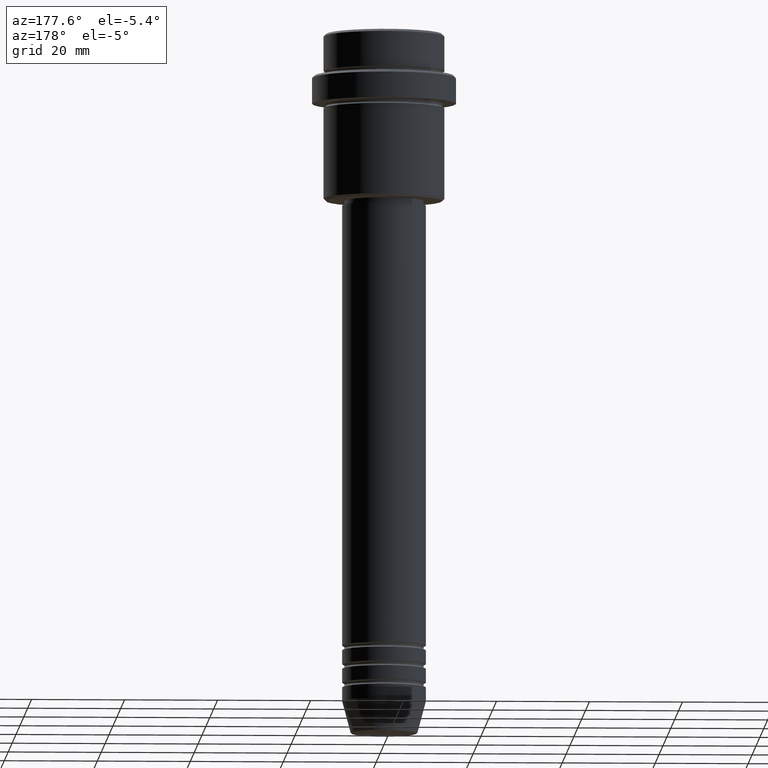
[diagram: clean part render]
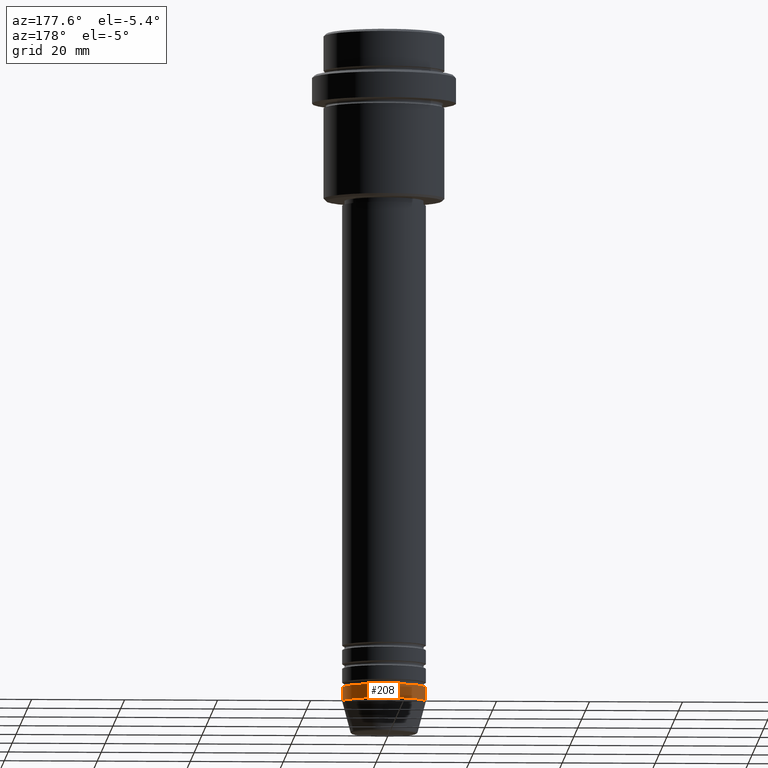
[diagram: same view with one face highlighted and labeled with its STEP entity id]
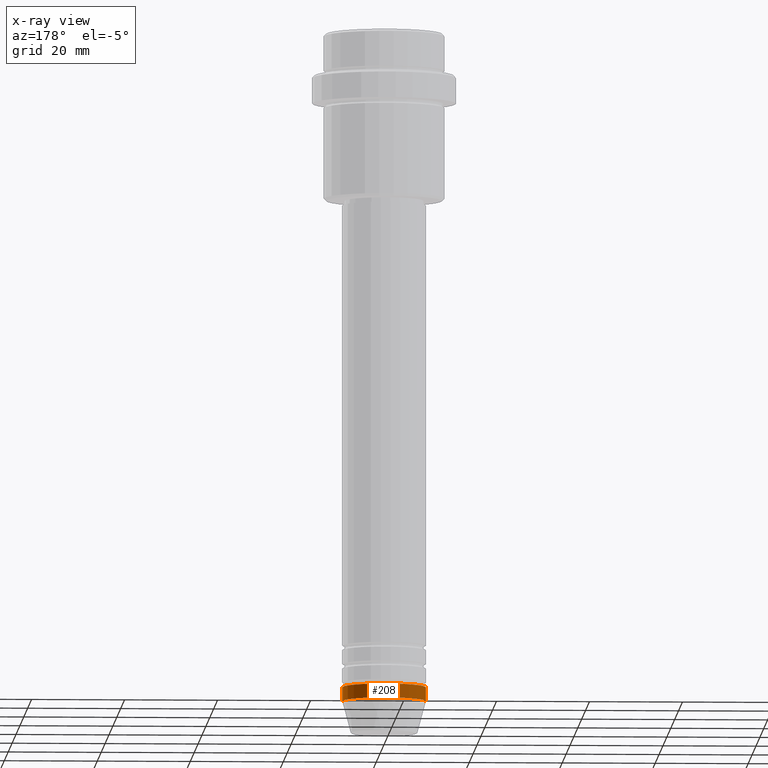
[diagram: x-ray of the same camera — body ghosted, the highlighted face saturated]
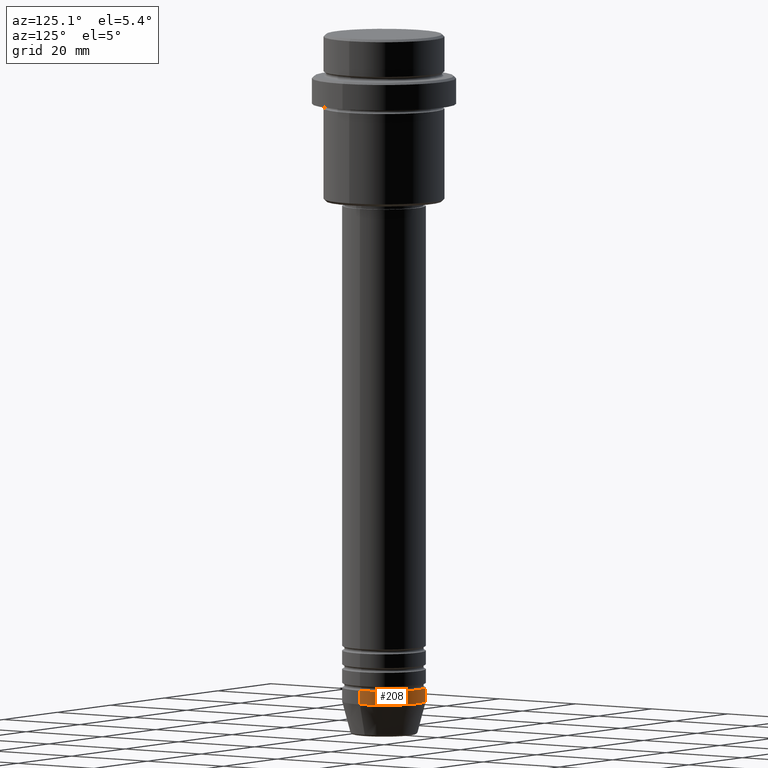
[diagram: same view with one face highlighted and labeled with its STEP entity id]
A machine part, auxiliary view. The second image highlights one B-rep face of the part: STEP entity #208.
The next image is the same camera in x-ray: the body ghosted, the highlighted face saturated — about 0% of this face is hidden behind the body in this view.
A second angle (auxiliary view) of the same face is appended — the face is thin or edge-on in the first view.
In plain terms, the highlighted cylindrical surface (partial cylindrical patch) has radius 9 mm, axis along (-0, -0, 1).
Its self-contained STEP definition (entity closure, byte-faithful):
#9 = VERTEX_POINT ( 'NONE', #414 ) ;
#13 = CARTESIAN_POINT ( 'NONE',  ( 0.000000000000000000, 0.000000000000000000, -141.0000000000000000 ) ) ;
#50 = ORIENTED_EDGE ( 'NONE', *, *, #1260, .F. ) ;
#55 = CARTESIAN_POINT ( 'NONE',  ( -9.000000000000000000, 1.102182119232617714E-15, -141.0000000000000000 ) ) ;
#104 = EDGE_LOOP ( 'NONE', ( #133, #1220, #866, #50 ) ) ;
#133 = ORIENTED_EDGE ( 'NONE', *, *, #1120, .T. ) ;
#177 = CARTESIAN_POINT ( 'NONE',  ( 0.000000000000000000, 0.000000000000000000, 0.000000000000000000 ) ) ;
#205 = LINE ( 'NONE', #848, #1293 ) ;
#208 = ADVANCED_FACE ( 'NONE', ( #373 ), #723, .T. ) ;
#290 = VERTEX_POINT ( 'NONE', #1255 ) ;
#292 = VERTEX_POINT ( 'NONE', #55 ) ;
#334 = CARTESIAN_POINT ( 'NONE',  ( 9.000000000000000000, 0.000000000000000000, -141.0000000000000000 ) ) ;
#373 = FACE_OUTER_BOUND ( 'NONE', #104, .T. ) ;
#387 = DIRECTION ( 'NONE',  ( 1.000000000000000000, 0.000000000000000000, 0.000000000000000000 ) ) ;
#414 = CARTESIAN_POINT ( 'NONE',  ( 9.000000000000000000, 0.000000000000000000, -144.0000000000000000 ) ) ;
#433 = EDGE_CURVE ( 'NONE', #290, #292, #205, .T. ) ;
#436 = CIRCLE ( 'NONE', #505, 9.000000000000000000 ) ;
#441 = AXIS2_PLACEMENT_3D ( 'NONE', #177, #1049, #387 ) ;
#484 = EDGE_CURVE ( 'NONE', #1219, #292, #436, .T. ) ;
#505 = AXIS2_PLACEMENT_3D ( 'NONE', #13, #1207, #567 ) ;
#537 = LINE ( 'NONE', #1210, #714 ) ;
#554 = AXIS2_PLACEMENT_3D ( 'NONE', #1042, #1172, #1280 ) ;
#567 = DIRECTION ( 'NONE',  ( 1.000000000000000000, 0.000000000000000000, 0.000000000000000000 ) ) ;
#714 = VECTOR ( 'NONE', #1311, 1000.000000000000000 ) ;
#723 = CYLINDRICAL_SURFACE ( 'NONE', #441, 9.000000000000000000 ) ;
#739 = CIRCLE ( 'NONE', #554, 9.000000000000000000 ) ;
#848 = CARTESIAN_POINT ( 'NONE',  ( -9.000000000000000000, 1.102182119232617714E-15, 0.000000000000000000 ) ) ;
#866 = ORIENTED_EDGE ( 'NONE', *, *, #484, .F. ) ;
#1042 = CARTESIAN_POINT ( 'NONE',  ( 0.000000000000000000, 0.000000000000000000, -144.0000000000000000 ) ) ;
#1049 = DIRECTION ( 'NONE',  ( -0.000000000000000000, -0.000000000000000000, 1.000000000000000000 ) ) ;
#1120 = EDGE_CURVE ( 'NONE', #9, #290, #739, .T. ) ;
#1172 = DIRECTION ( 'NONE',  ( -0.000000000000000000, -0.000000000000000000, 1.000000000000000000 ) ) ;
#1207 = DIRECTION ( 'NONE',  ( -0.000000000000000000, -0.000000000000000000, 1.000000000000000000 ) ) ;
#1210 = CARTESIAN_POINT ( 'NONE',  ( 9.000000000000000000, 0.000000000000000000, 0.000000000000000000 ) ) ;
#1219 = VERTEX_POINT ( 'NONE', #334 ) ;
#1220 = ORIENTED_EDGE ( 'NONE', *, *, #433, .T. ) ;
#1255 = CARTESIAN_POINT ( 'NONE',  ( -9.000000000000000000, 1.102182119232617714E-15, -144.0000000000000000 ) ) ;
#1260 = EDGE_CURVE ( 'NONE', #9, #1219, #537, .T. ) ;
#1280 = DIRECTION ( 'NONE',  ( 1.000000000000000000, 0.000000000000000000, 0.000000000000000000 ) ) ;
#1290 = DIRECTION ( 'NONE',  ( -0.000000000000000000, -0.000000000000000000, 1.000000000000000000 ) ) ;
#1293 = VECTOR ( 'NONE', #1290, 1000.000000000000000 ) ;
#1311 = DIRECTION ( 'NONE',  ( -0.000000000000000000, -0.000000000000000000, 1.000000000000000000 ) ) ;